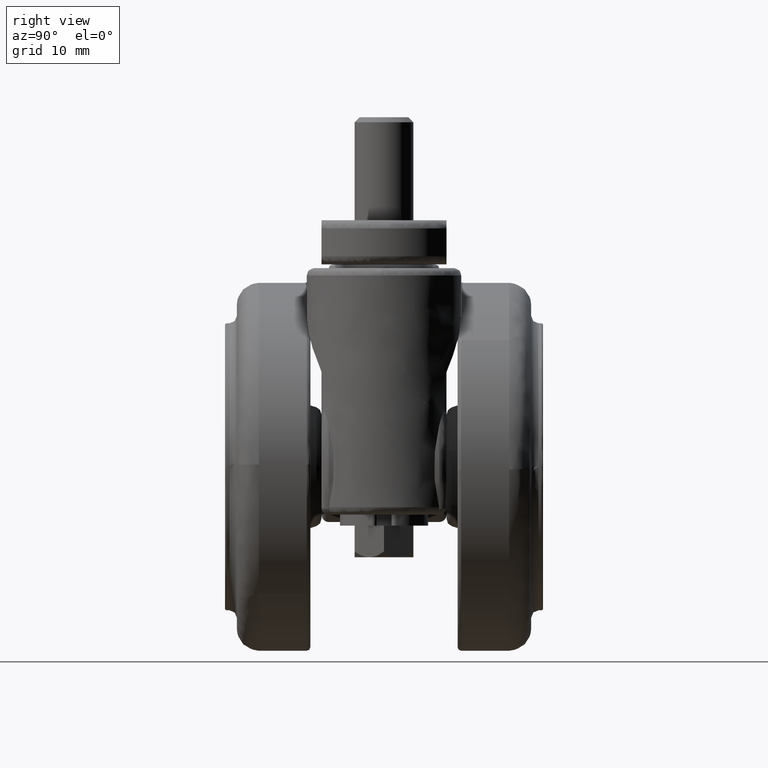
[diagram: clean part render]
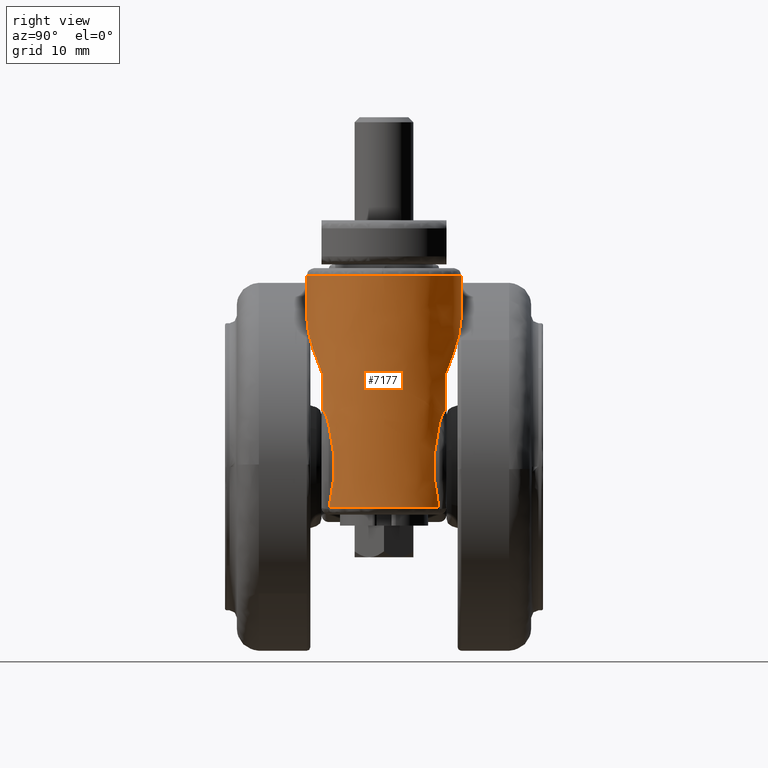
[diagram: same view with one face highlighted and labeled with its STEP entity id]
A machine part, right view. The second image highlights one B-rep face of the part: STEP entity #7177.
In plain terms, the highlighted face is a freeform B-spline surface patch.
Its self-contained STEP definition (entity closure, byte-faithful):
#6346=CARTESIAN_POINT('',(17.066641229069269,-10.499788519136381,26.000000000448040));
#6347=VERTEX_POINT('',#6346);
#6363=CARTESIAN_POINT('',(27.496683987472480,-0.263866002241206,26.000000000879439));
#6364=VERTEX_POINT('',#6363);
#6365=CARTESIAN_POINT('',(27.496683987472490,-0.263866002241206,26.000000000879439));
#6366=CARTESIAN_POINT('',(27.240996322990252,-10.435212787233747,26.000000000874092));
#6367=CARTESIAN_POINT('',(17.066641229069273,-10.499788519136381,26.000000000448040));
#6375=(BOUNDED_CURVE()B_SPLINE_CURVE(2,(#6365,#6366,#6367),.UNSPECIFIED.,.F.,.U.)B_SPLINE_CURVE_WITH_KNOTS((3,3),(0.004420108231629,0.248879498121108),.UNSPECIFIED.)CURVE()GEOMETRIC_REPRESENTATION_ITEM()RATIONAL_B_SPLINE_CURVE((0.989826157678330,0.713551589741604,0.997386268291256))REPRESENTATION_ITEM(''));
#6376=EDGE_CURVE('',#6364,#6347,#6375,.T.);
#6479=CARTESIAN_POINT('',(16.933358770929850,10.499788519136370,26.000000000448029));
#6480=VERTEX_POINT('',#6479);
#6481=CARTESIAN_POINT('',(27.500000000000000,0.0,26.0));
#6482=VERTEX_POINT('',#6481);
#6483=CARTESIAN_POINT('',(16.933358770929850,10.499788519136377,26.000000000448033));
#6484=CARTESIAN_POINT('',(16.966679049905721,10.500000000000000,26.000000000446637));
#6485=CARTESIAN_POINT('',(17.0,10.500000000000000,26.000000000445240));
#6486=CARTESIAN_POINT('',(27.500000000000007,10.500000000000000,26.000000000005524));
#6487=CARTESIAN_POINT('',(27.500000000000000,0.0,26.0));
#6495=(BOUNDED_CURVE()B_SPLINE_CURVE(2,(#6483,#6484,#6485,#6486,#6487),.UNSPECIFIED.,.F.,.U.)B_SPLINE_CURVE_WITH_KNOTS((3,2,3),(0.748879498121093,0.750000000000000,1.0),.UNSPECIFIED.)CURVE()GEOMETRIC_REPRESENTATION_ITEM()RATIONAL_B_SPLINE_CURVE((0.997386268291222,0.998687250392002,1.0,0.707106781186547,1.0))REPRESENTATION_ITEM(''));
#6496=EDGE_CURVE('',#6480,#6482,#6495,.T.);
#6555=CARTESIAN_POINT('',(27.500000000000000,0.0,26.0));
#6556=CARTESIAN_POINT('',(27.500000000000004,-0.131953837338587,26.000000000439716));
#6557=CARTESIAN_POINT('',(27.496683987472490,-0.263866002241206,26.000000000879439));
#6565=(BOUNDED_CURVE()B_SPLINE_CURVE(2,(#6555,#6556,#6557),.UNSPECIFIED.,.F.,.U.)B_SPLINE_CURVE_WITH_KNOTS((3,3),(0.0,0.004420108231629),.UNSPECIFIED.)CURVE()GEOMETRIC_REPRESENTATION_ITEM()RATIONAL_B_SPLINE_CURVE((1.0,0.994821521090138,0.989826157678330))REPRESENTATION_ITEM(''));
#6566=EDGE_CURVE('',#6482,#6364,#6565,.T.);
#6792=CARTESIAN_POINT('',(16.933361268720290,10.499787670645620,20.384086724455379));
#6793=VERTEX_POINT('',#6792);
#6794=CARTESIAN_POINT('',(16.933358770929850,10.499788519136370,26.000000000448029));
#6795=CARTESIAN_POINT('',(16.933361268720290,10.499787670645620,20.384086724455379));
#6796=QUASI_UNIFORM_CURVE('',1,(#6794,#6795),.UNSPECIFIED.,.F.,.U.);
#6797=EDGE_CURVE('',#6480,#6793,#6796,.T.);
#6939=CARTESIAN_POINT('',(17.066641413207300,-10.499817838973531,20.272647783629811));
#6940=VERTEX_POINT('',#6939);
#6962=CARTESIAN_POINT('',(17.066641229069269,-10.499788519136381,26.000000000448040));
#6963=CARTESIAN_POINT('',(17.066641413207300,-10.499817838973531,20.272647783629811));
#6964=QUASI_UNIFORM_CURVE('',1,(#6962,#6963),.UNSPECIFIED.,.F.,.U.);
#6965=EDGE_CURVE('',#6347,#6940,#6964,.T.);
#6970=CARTESIAN_POINT('',(16.933358770997909,10.499788519136800,26.787500000901431));
#6971=CARTESIAN_POINT('',(27.433147290134702,10.566429748138898,26.787500000901431));
#6972=CARTESIAN_POINT('',(27.499788519136800,0.066641229002096,26.787500000901431));
#6973=CARTESIAN_POINT('',(27.566429748138901,-10.433147290134706,26.787500000901431));
#6974=CARTESIAN_POINT('',(17.066641229002091,-10.499788519136800,26.787500000901431));
#6975=CARTESIAN_POINT('',(16.933358770997909,10.499788519136800,-6.307187500022629));
#6976=CARTESIAN_POINT('',(27.433147290134702,10.566429748138898,-6.307187500022629));
#6977=CARTESIAN_POINT('',(27.499788519136800,0.066641229002096,-6.307187500022629));
#6978=CARTESIAN_POINT('',(27.566429748138901,-10.433147290134706,-6.307187500022629));
#6979=CARTESIAN_POINT('',(17.066641229002091,-10.499788519136800,-6.307187500022629));
#6987=(BOUNDED_SURFACE()B_SPLINE_SURFACE(2,1,((#6970,#6975),(#6971,#6976),(#6972,#6977),(#6973,#6978),(#6974,#6979)),.UNSPECIFIED.,.F.,.F.,.U.)B_SPLINE_SURFACE_WITH_KNOTS((3,2,3),(2,2),(0.0,17.396969619669981,34.793939239339963),(0.0,33.094687500924060),.UNSPECIFIED.)GEOMETRIC_REPRESENTATION_ITEM()RATIONAL_B_SPLINE_SURFACE(((1.0,1.0),(0.707106781186548,0.707106781186548),(1.0,1.0),(0.707106781186548,0.707106781186548),(1.0,1.0)))REPRESENTATION_ITEM('')SURFACE());
#6988=ORIENTED_EDGE('',*,*,#6376,.T.);
#6989=ORIENTED_EDGE('',*,*,#6965,.T.);
#6990=CARTESIAN_POINT('',(23.444736304829000,-8.289473684210529,12.352908143309079));
#6991=VERTEX_POINT('',#6990);
#6992=CARTESIAN_POINT('',(23.444736304829000,-8.289473684210529,12.352908143309079));
#6993=CARTESIAN_POINT('',(23.277214524976479,-8.419714155359559,12.670849777285261));
#6994=CARTESIAN_POINT('',(23.102589165663691,-8.547301150580017,12.986543854283820));
#6995=CARTESIAN_POINT('',(22.740790635268340,-8.794386622875088,13.610157534952821));
#6996=CARTESIAN_POINT('',(22.553510021132009,-8.913989577578912,13.918316291558380));
#6997=CARTESIAN_POINT('',(21.972196234565899,-9.259061508743798,14.832193598176421));
#6998=CARTESIAN_POINT('',(21.558753562722330,-9.470864918476606,15.427338691197191));
#6999=CARTESIAN_POINT('',(20.676969535083430,-9.846792362548619,16.590526336774442));
#7000=CARTESIAN_POINT('',(20.208658148712569,-10.011012660287861,17.158561869106929));
#7001=CARTESIAN_POINT('',(19.460962539421310,-10.210768932297750,17.990551981273939));
#7002=CARTESIAN_POINT('',(19.204171832277890,-10.269557674833379,18.264532973260430));
#7003=CARTESIAN_POINT('',(18.806893831663370,-10.344216681830391,18.670473626070130));
#7004=CARTESIAN_POINT('',(18.672450536296331,-10.366844996823209,18.804948442408062));
#7005=CARTESIAN_POINT('',(18.399376410055481,-10.407222856164170,19.072216507424599));
#7006=CARTESIAN_POINT('',(18.261432916464230,-10.424867313323009,19.204334003151310));
#7007=CARTESIAN_POINT('',(17.778180644425969,-10.476814219947361,19.657280877899488));
#7008=CARTESIAN_POINT('',(17.426278467527190,-10.497559246845780,19.969890472513601));
#7009=CARTESIAN_POINT('',(17.066641413207300,-10.499817838973531,20.272647783629811));
#7010=B_SPLINE_CURVE_WITH_KNOTS('',3,(#6992,#6993,#6994,#6995,#6996,#6997,#6998,#6999,#7000,#7001,#7002,#7003,#7004,#7005,#7006,#7007,#7008,#7009),.UNSPECIFIED.,.F.,.U.,(4,2,2,2,2,2,2,2,4),(0.0,0.062500000000000,0.125000000000000,0.250000000000000,0.375000000000000,0.437500000000000,0.468750000000001,0.500000000000001,0.577263830940606),.UNSPECIFIED.);
#7011=EDGE_CURVE('',#6991,#6940,#7010,.T.);
#7012=ORIENTED_EDGE('',*,*,#7011,.F.);
#7013=CARTESIAN_POINT('',(23.444736304829000,-8.289473684210520,7.495513496631610));
#7014=VERTEX_POINT('',#7013);
#7015=CARTESIAN_POINT('',(23.444736304829000,-8.289473684210529,12.352908143309079));
#7016=CARTESIAN_POINT('',(23.444736304829000,-8.289473684210520,7.495513496631610));
#7017=QUASI_UNIFORM_CURVE('',1,(#7015,#7016),.UNSPECIFIED.,.F.,.U.);
#7018=EDGE_CURVE('',#6991,#7014,#7017,.T.);
#7019=ORIENTED_EDGE('',*,*,#7018,.T.);
#7020=CARTESIAN_POINT('',(24.348469228349551,-7.500000000000000,5.670277439077900));
#7021=VERTEX_POINT('',#7020);
#7022=CARTESIAN_POINT('',(23.444736304829000,-8.289473684210520,7.495513496631610));
#7023=CARTESIAN_POINT('',(23.463765574298520,-8.274679183561092,7.498481422901889));
#7024=CARTESIAN_POINT('',(23.482533942176229,-8.259982601449558,7.497245026414161));
#7025=CARTESIAN_POINT('',(23.519662820475538,-8.230708085883332,7.488535788358912));
#7026=CARTESIAN_POINT('',(23.537707023915839,-8.216378104483328,7.481087933042469));
#7027=CARTESIAN_POINT('',(23.572019207566520,-8.188958775190420,7.462474915929199));
#7028=CARTESIAN_POINT('',(23.588551724079089,-8.175659310497117,7.451186797744082));
#7029=CARTESIAN_POINT('',(23.620377338548540,-8.149909378478805,7.426026250290613));
#7030=CARTESIAN_POINT('',(23.635503761657759,-8.137594497501986,7.412296603746182));
#7031=CARTESIAN_POINT('',(23.679208029540199,-8.101826806660395,7.368671651291872));
#7032=CARTESIAN_POINT('',(23.706140356285729,-8.079529196256948,7.336383996798968));
#7033=CARTESIAN_POINT('',(23.757289495272829,-8.036799685723656,7.267891545398928));
#7034=CARTESIAN_POINT('',(23.781278974995850,-8.016554301004902,7.231892612146589));
#7035=CARTESIAN_POINT('',(23.849345225237521,-7.958644330301486,7.121415082541811));
#7036=CARTESIAN_POINT('',(23.889977161431421,-7.923430565623991,7.043979866434981));
#7037=CARTESIAN_POINT('',(23.965679098853361,-7.856962002269619,6.884682574155233));
#7038=CARTESIAN_POINT('',(24.000655634264660,-7.825777111226827,6.802744657327132));
#7039=CARTESIAN_POINT('',(24.066510210340311,-7.766363380071743,6.635590123350353));
#7040=CARTESIAN_POINT('',(24.097381483325510,-7.738135522662356,6.550285534624954));
#7041=CARTESIAN_POINT('',(24.155493284445530,-7.684431087803155,6.378252202096585));
#7042=CARTESIAN_POINT('',(24.182791039462661,-7.658901953655476,6.291360114374324));
#7043=CARTESIAN_POINT('',(24.260410581338270,-7.585611590344099,6.028533623684653));
#7044=CARTESIAN_POINT('',(24.306505623803801,-7.541115767562009,5.850471361680555));
#7045=CARTESIAN_POINT('',(24.348469228349551,-7.500000000000000,5.670277439077900));
#7046=B_SPLINE_CURVE_WITH_KNOTS('',3,(#7022,#7023,#7024,#7025,#7026,#7027,#7028,#7029,#7030,#7031,#7032,#7033,#7034,#7035,#7036,#7037,#7038,#7039,#7040,#7041,#7042,#7043,#7044,#7045),.UNSPECIFIED.,.F.,.U.,(4,2,2,2,2,2,2,2,2,2,2,4),(0.0,0.031250000000002,0.062500000000004,0.093750000000006,0.125000000000008,0.187500000000008,0.250000000000008,0.375000000000006,0.500000000000005,0.625000000000003,0.750000000000002,1.0),.UNSPECIFIED.);
#7047=EDGE_CURVE('',#7014,#7021,#7046,.T.);
#7048=ORIENTED_EDGE('',*,*,#7047,.T.);
#7049=CARTESIAN_POINT('',(24.387496796514402,-7.461560901144560,-5.499999999999930));
#7050=VERTEX_POINT('',#7049);
#7051=CARTESIAN_POINT('',(24.387496796514419,-7.461560901144566,-5.499999999999930));
#7052=CARTESIAN_POINT('',(24.591607906857501,-7.259475815494286,-4.594952900068069));
#7053=CARTESIAN_POINT('',(24.745592149765368,-7.090825080285545,-3.678596244771717));
#7054=CARTESIAN_POINT('',(24.899952683691879,-6.917134313634394,-2.282861503365935));
#7055=CARTESIAN_POINT('',(24.938587677357489,-6.872433661211703,-1.814079244724024));
#7056=CARTESIAN_POINT('',(24.976683918457908,-6.828095880238288,-1.105110921714486));
#7057=CARTESIAN_POINT('',(24.986070121916239,-6.817093930386384,-0.867823045322895));
#7058=CARTESIAN_POINT('',(24.995073604744501,-6.806527709977105,-0.510391748788572));
#7059=CARTESIAN_POINT('',(24.997228598218470,-6.803994324404482,-0.390998149344826));
#7060=CARTESIAN_POINT('',(24.999826061995481,-6.800940155339523,-0.151703705801492));
#7061=CARTESIAN_POINT('',(25.000267097319561,-6.800421074996643,-0.031636490423397));
#7062=CARTESIAN_POINT('',(24.998154063935399,-6.802906612687739,0.567438343142241));
#7063=CARTESIAN_POINT('',(24.982711880617551,-6.821160791217040,1.042809246749909));
#7064=CARTESIAN_POINT('',(24.925451237321560,-6.887608162012940,1.986258958686160));
#7065=CARTESIAN_POINT('',(24.883632944557299,-6.935780762983991,2.454340519859482));
#7066=CARTESIAN_POINT('',(24.719714948039599,-7.119191942051097,3.848583702506174));
#7067=CARTESIAN_POINT('',(24.559346268816618,-7.293383540954962,4.764760348257521));
#7068=CARTESIAN_POINT('',(24.348469228349540,-7.500000000000001,5.670277439077898));
#7069=B_SPLINE_CURVE_WITH_KNOTS('',3,(#7051,#7052,#7053,#7054,#7055,#7056,#7057,#7058,#7059,#7060,#7061,#7062,#7063,#7064,#7065,#7066,#7067,#7068),.UNSPECIFIED.,.F.,.U.,(4,2,2,2,2,2,2,2,4),(0.0,0.250000000000000,0.375000000000000,0.437500000000000,0.468750000000000,0.500000000000000,0.625000000000000,0.750000000000000,1.0),.UNSPECIFIED.);
#7070=EDGE_CURVE('',#7050,#7021,#7069,.T.);
#7071=ORIENTED_EDGE('',*,*,#7070,.F.);
#7072=CARTESIAN_POINT('',(24.387496796514402,7.461560901144600,-5.500000000000090));
#7073=VERTEX_POINT('',#7072);
#7074=CARTESIAN_POINT('',(24.387496796514402,-7.461560901144560,-5.499999999999930));
#7075=CARTESIAN_POINT('',(24.879021955885310,-6.975044496787764,-5.499999999999941));
#7076=CARTESIAN_POINT('',(25.654538373391190,-6.038195476380090,-5.499999999999972));
#7077=CARTESIAN_POINT('',(26.557007246830921,-4.457228420110489,-5.499999999999970));
#7078=CARTESIAN_POINT('',(27.150158965397772,-2.872538270329358,-5.500000000000021));
#7079=CARTESIAN_POINT('',(27.463630848414368,-1.254810542979896,-5.499999999999945));
#7080=CARTESIAN_POINT('',(27.523506287341561,0.130258590157108,-5.500000000000083));
#7081=CARTESIAN_POINT('',(27.424175341531299,1.468154730530902,-5.499999999999983));
#7082=CARTESIAN_POINT('',(27.101001992362502,3.083207046560147,-5.500000000000010));
#7083=CARTESIAN_POINT('',(26.418614307778949,4.777602972963218,-5.499999999999995));
#7084=CARTESIAN_POINT('',(25.439072584096859,6.312029396801613,-5.500000000000021));
#7085=CARTESIAN_POINT('',(24.756103696204651,7.096644660967606,-5.499999999999966));
#7086=CARTESIAN_POINT('',(24.387496796514402,7.461560901144600,-5.500000000000090));
#7087=B_SPLINE_CURVE_WITH_KNOTS('',3,(#7074,#7075,#7076,#7077,#7078,#7079,#7080,#7081,#7082,#7083,#7084,#7085,#7086),.UNSPECIFIED.,.F.,.U.,(4,1,1,1,1,1,1,1,1,1,4),(0.000000050849522,2.074751129039058,3.630837574232892,5.446271736359417,7.132016395030959,8.558389288157400,9.595785758416415,11.151862512480630,13.485989011894739,15.042073434004470,16.598130696257691),.UNSPECIFIED.);
#7088=EDGE_CURVE('',#7050,#7073,#7087,.T.);
#7089=ORIENTED_EDGE('',*,*,#7088,.T.);
#7090=CARTESIAN_POINT('',(24.348469228349600,7.500000000000000,5.670277439077640));
#7091=VERTEX_POINT('',#7090);
#7092=CARTESIAN_POINT('',(24.348469228349600,7.500000000000015,5.670277439077637));
#7093=CARTESIAN_POINT('',(24.556429449538570,7.296241428516299,4.777285323481275));
#7094=CARTESIAN_POINT('',(24.716913176272261,7.122259743142034,3.867212030633062));
#7095=CARTESIAN_POINT('',(24.854665867555529,6.968208694509642,2.701972423619113));
#7096=CARTESIAN_POINT('',(24.879054611057409,6.940571206579746,2.467537423800490));
#7097=CARTESIAN_POINT('',(24.910768689574631,6.904346189137175,2.113676444957184));
#7098=CARTESIAN_POINT('',(24.920528270621251,6.893142805216736,1.995354695177883));
#7099=CARTESIAN_POINT('',(24.938399472238739,6.872554084034672,1.757953756344199));
#7100=CARTESIAN_POINT('',(24.946518547177121,6.863160117483059,1.638748896004445));
#7101=CARTESIAN_POINT('',(24.982840107139641,6.821014948325785,1.042242429583253));
#7102=CARTESIAN_POINT('',(24.998055997967970,6.803021954710867,0.566905785580768));
#7103=CARTESIAN_POINT('',(25.001594861028138,6.798859253056889,-0.380052959832890));
#7104=CARTESIAN_POINT('',(24.989918159508932,6.812684101389323,-0.851675440138684));
#7105=CARTESIAN_POINT('',(24.940177693791739,6.870592045230560,-1.791339520130793));
#7106=CARTESIAN_POINT('',(24.902114451389039,6.914659893804307,-2.259382157528934));
#7107=CARTESIAN_POINT('',(24.799809388294470,7.029858302705028,-3.192109989975400));
#7108=CARTESIAN_POINT('',(24.735568163342641,7.100970299915750,-3.656796446062708));
#7109=CARTESIAN_POINT('',(24.619492962993920,7.224716291273144,-4.351515758666130));
#7110=CARTESIAN_POINT('',(24.577453349588211,7.268865218590044,-4.582990060655389));
#7111=CARTESIAN_POINT('',(24.487141647799099,7.361855117903759,-5.043302981962673));
#7112=CARTESIAN_POINT('',(24.438865457547092,7.410702129923942,-5.272226717022587));
#7113=CARTESIAN_POINT('',(24.387496796514380,7.461560901144600,-5.500000000000084));
#7114=B_SPLINE_CURVE_WITH_KNOTS('',3,(#7092,#7093,#7094,#7095,#7096,#7097,#7098,#7099,#7100,#7101,#7102,#7103,#7104,#7105,#7106,#7107,#7108,#7109,#7110,#7111,#7112,#7113),.UNSPECIFIED.,.F.,.U.,(4,2,2,2,2,2,2,2,2,2,4),(0.0,0.250000000000000,0.312500000000000,0.343750000000000,0.375000000000000,0.500000000000000,0.625000000000000,0.750000000000000,0.875000000000000,0.937500000000000,1.0),.UNSPECIFIED.);
#7115=EDGE_CURVE('',#7091,#7073,#7114,.T.);
#7116=ORIENTED_EDGE('',*,*,#7115,.F.);
#7117=CARTESIAN_POINT('',(23.444736304829000,8.289473684210529,7.495513496631610));
#7118=VERTEX_POINT('',#7117);
#7119=CARTESIAN_POINT('',(24.348469228349600,7.500000000000000,5.670277439077609));
#7120=CARTESIAN_POINT('',(24.306485445117129,7.541135538556476,5.850558010021233));
#7121=CARTESIAN_POINT('',(24.260339695562070,7.585681000064450,6.028829263061417));
#7122=CARTESIAN_POINT('',(24.156602438792671,7.683627415665074,6.379981162692980));
#7123=CARTESIAN_POINT('',(24.099160024349530,7.736913666786130,6.552843020518010));
#7124=CARTESIAN_POINT('',(24.000126486922550,7.826251063040437,6.804024185300461));
#7125=CARTESIAN_POINT('',(23.964934810557949,7.857623981199739,6.886397962104193));
#7126=CARTESIAN_POINT('',(23.888713907298140,7.924531042821679,7.046484906554212));
#7127=CARTESIAN_POINT('',(23.847601565044918,7.960144701152255,7.124548945417203));
#7128=CARTESIAN_POINT('',(23.779510430218298,8.018050014859179,7.234602234181208));
#7129=CARTESIAN_POINT('',(23.755713738193350,8.038123323939679,7.270140030112033));
#7130=CARTESIAN_POINT('',(23.704923070267480,8.080538429156354,7.337867775534505));
#7131=CARTESIAN_POINT('',(23.677814279607151,8.102975588712804,7.370236670928281));
#7132=CARTESIAN_POINT('',(23.619545324548181,8.150646394026250,7.428043775631136));
#7133=CARTESIAN_POINT('',(23.587961554439701,8.176224265298812,7.453965876198948));
#7134=CARTESIAN_POINT('',(23.537140041726111,8.216828478474545,7.481323532582771));
#7135=CARTESIAN_POINT('',(23.519582688638920,8.230771300586074,7.488555666724201));
#7136=CARTESIAN_POINT('',(23.482595256533710,8.259934223498295,7.497229561472284));
#7137=CARTESIAN_POINT('',(23.463642894589611,8.274774562158568,7.498462288991818));
#7138=CARTESIAN_POINT('',(23.444736304829000,8.289473684210529,7.495513496631620));
#7139=B_SPLINE_CURVE_WITH_KNOTS('',3,(#7119,#7120,#7121,#7122,#7123,#7124,#7125,#7126,#7127,#7128,#7129,#7130,#7131,#7132,#7133,#7134,#7135,#7136,#7137,#7138),.UNSPECIFIED.,.F.,.U.,(4,2,2,2,2,2,2,2,2,4),(0.0,0.250000000000002,0.500000000000004,0.625000000000005,0.750000000000006,0.812500000000005,0.875000000000003,0.937500000000002,0.968750000000001,1.0),.UNSPECIFIED.);
#7140=EDGE_CURVE('',#7091,#7118,#7139,.T.);
#7141=ORIENTED_EDGE('',*,*,#7140,.T.);
#7142=CARTESIAN_POINT('',(23.444736304829000,8.289473684210529,12.352908143309101));
#7143=VERTEX_POINT('',#7142);
#7144=CARTESIAN_POINT('',(23.444736304829000,8.289473684210529,7.495513496631610));
#7145=CARTESIAN_POINT('',(23.444736304829000,8.289473684210529,12.352908143309101));
#7146=QUASI_UNIFORM_CURVE('',1,(#7144,#7145),.UNSPECIFIED.,.F.,.U.);
#7147=EDGE_CURVE('',#7118,#7143,#7146,.T.);
#7148=ORIENTED_EDGE('',*,*,#7147,.T.);
#7149=CARTESIAN_POINT('',(16.933361268720290,10.499787670645620,20.384086724455379));
#7150=CARTESIAN_POINT('',(17.040892335886749,10.500468150988540,20.294757275005519));
#7151=CARTESIAN_POINT('',(17.147763578537791,10.499493961250041,20.204539266750910));
#7152=CARTESIAN_POINT('',(17.543614636860301,10.489933315062251,19.864980784299050));
#7153=CARTESIAN_POINT('',(17.826553255399361,10.471099055103240,19.611393593927719));
#7154=CARTESIAN_POINT('',(18.654920283921999,10.383622720683530,18.836549331296549));
#7155=CARTESIAN_POINT('',(19.179964647915050,10.284198025911801,18.301237053668999));
#7156=CARTESIAN_POINT('',(19.929341011786349,10.086411897229411,17.470270620824522));
#7157=CARTESIAN_POINT('',(20.172750352121220,10.012318764228270,17.188608666611440));
#7158=CARTESIAN_POINT('',(20.528477978724322,9.890174931671311,16.759058545925090));
#7159=CARTESIAN_POINT('',(20.645488604337540,9.847624265640476,16.614698523813061));
#7160=CARTESIAN_POINT('',(20.876400935980161,9.759037149269039,16.323611692044860));
#7161=CARTESIAN_POINT('',(20.990339356456019,9.712979579650634,16.176828926603580));
#7162=CARTESIAN_POINT('',(21.549939242215761,9.475471996184339,15.440136008301760));
#7163=CARTESIAN_POINT('',(21.967427653681099,9.261754710826889,14.839450777845540));
#7164=CARTESIAN_POINT('',(22.552159980251520,8.914868326068708,13.920555050179139));
#7165=CARTESIAN_POINT('',(22.740132789201859,8.794830282560051,13.611273249062149));
#7166=CARTESIAN_POINT('',(23.102613424265051,8.547296323395976,12.986518638496170));
#7167=CARTESIAN_POINT('',(23.277178482853309,8.419743189061620,12.670917909235980));
#7168=CARTESIAN_POINT('',(23.444736304829000,8.289473684210529,12.352908143309101));
#7169=B_SPLINE_CURVE_WITH_KNOTS('',3,(#7149,#7150,#7151,#7152,#7153,#7154,#7155,#7156,#7157,#7158,#7159,#7160,#7161,#7162,#7163,#7164,#7165,#7166,#7167,#7168),.UNSPECIFIED.,.F.,.U.,(4,2,2,2,2,2,2,2,2,4),(0.414715125651267,0.437500000000003,0.500000000000003,0.625000000000003,0.687500000000003,0.718750000000003,0.750000000000002,0.875000000000001,0.937500000000001,1.0),.UNSPECIFIED.);
#7170=EDGE_CURVE('',#6793,#7143,#7169,.T.);
#7171=ORIENTED_EDGE('',*,*,#7170,.F.);
#7172=ORIENTED_EDGE('',*,*,#6797,.F.);
#7173=ORIENTED_EDGE('',*,*,#6496,.T.);
#7174=ORIENTED_EDGE('',*,*,#6566,.T.);
#7175=EDGE_LOOP('',(#6988,#6989,#7012,#7019,#7048,#7071,#7089,#7116,#7141,#7148,#7171,#7172,#7173,#7174));
#7176=FACE_OUTER_BOUND('',#7175,.T.);
#7177=ADVANCED_FACE('',(#7176),#6987,.T.);